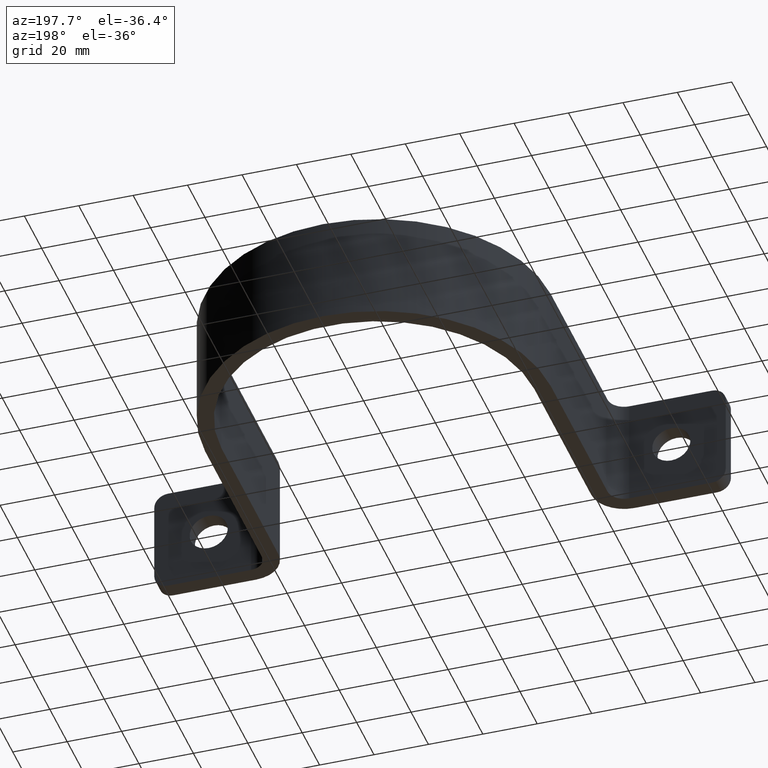
[diagram: clean part render]
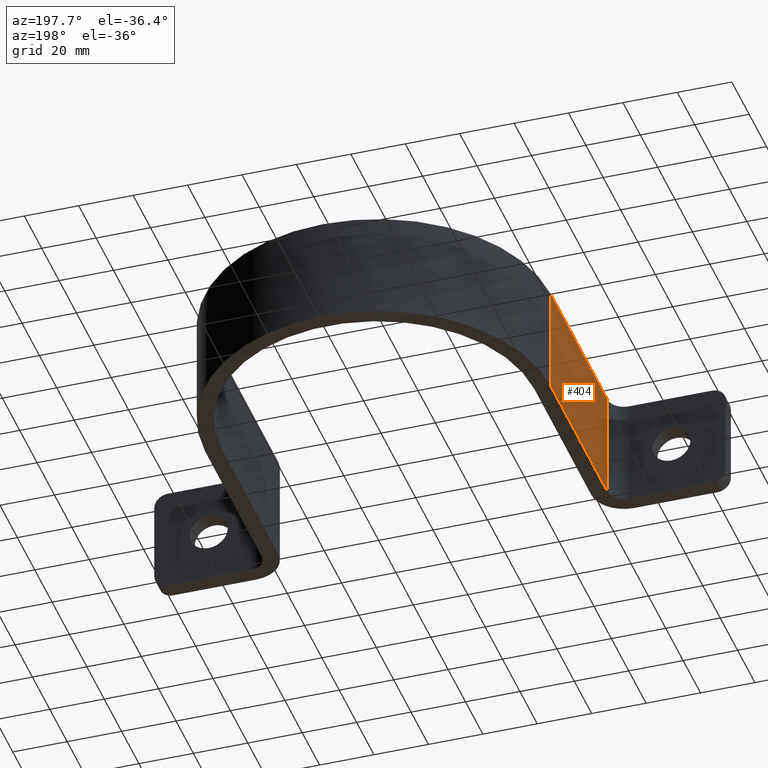
[diagram: same view with one face highlighted and labeled with its STEP entity id]
A machine part, auxiliary view. The second image highlights one B-rep face of the part: STEP entity #404.
In plain terms, the highlighted planar face has unit normal (-1, -0, 0).
Its self-contained STEP definition (entity closure, byte-faithful):
#50 = LINE ( 'NONE', #736, #629 ) ;
#100 = VECTOR ( 'NONE', #756, 1000.000000000000000 ) ;
#102 = VECTOR ( 'NONE', #323, 1000.000000000000000 ) ;
#147 = CARTESIAN_POINT ( 'NONE',  ( -63.50000000000001421, 5.999999999999974243, 20.00000000000000000 ) ) ;
#214 = ORIENTED_EDGE ( 'NONE', *, *, #609, .F. ) ;
#231 = CARTESIAN_POINT ( 'NONE',  ( -63.50000000000001421, 17.99999999999997513, -20.00000000000000000 ) ) ;
#273 = LINE ( 'NONE', #599, #100 ) ;
#282 = AXIS2_PLACEMENT_3D ( 'NONE', #147, #754, #310 ) ;
#310 = DIRECTION ( 'NONE',  ( 0.000000000000000000, 0.000000000000000000, 1.000000000000000000 ) ) ;
#316 = DIRECTION ( 'NONE',  ( -0.000000000000000000, -0.000000000000000000, -1.000000000000000000 ) ) ;
#323 = DIRECTION ( 'NONE',  ( -0.000000000000000000, 1.000000000000000000, 0.000000000000000000 ) ) ;
#329 = PLANE ( 'NONE',  #282 ) ;
#337 = EDGE_CURVE ( 'NONE', #486, #444, #273, .T. ) ;
#357 = VERTEX_POINT ( 'NONE', #679 ) ;
#404 = ADVANCED_FACE ( 'NONE', ( #655 ), #329, .T. ) ;
#405 = DIRECTION ( 'NONE',  ( -0.000000000000000000, 1.000000000000000000, 0.000000000000000000 ) ) ;
#444 = VERTEX_POINT ( 'NONE', #825 ) ;
#456 = EDGE_CURVE ( 'NONE', #357, #706, #735, .T. ) ;
#486 = VERTEX_POINT ( 'NONE', #839 ) ;
#505 = VECTOR ( 'NONE', #316, 1000.000000000000000 ) ;
#588 = LINE ( 'NONE', #596, #102 ) ;
#596 = CARTESIAN_POINT ( 'NONE',  ( -63.50000000000001421, 5.999999999999974243, -20.00000000000000000 ) ) ;
#599 = CARTESIAN_POINT ( 'NONE',  ( -63.50000000000001421, 83.49999999999998579, 20.00000000000000000 ) ) ;
#609 = EDGE_CURVE ( 'NONE', #706, #444, #588, .T. ) ;
#629 = VECTOR ( 'NONE', #405, 1000.000000000000000 ) ;
#655 = FACE_OUTER_BOUND ( 'NONE', #942, .T. ) ;
#679 = CARTESIAN_POINT ( 'NONE',  ( -63.50000000000001421, 17.99999999999997513, 20.00000000000000000 ) ) ;
#706 = VERTEX_POINT ( 'NONE', #231 ) ;
#707 = EDGE_CURVE ( 'NONE', #357, #486, #50, .T. ) ;
#716 = ORIENTED_EDGE ( 'NONE', *, *, #707, .T. ) ;
#735 = LINE ( 'NONE', #740, #505 ) ;
#736 = CARTESIAN_POINT ( 'NONE',  ( -63.50000000000001421, 5.999999999999974243, 20.00000000000000000 ) ) ;
#740 = CARTESIAN_POINT ( 'NONE',  ( -63.50000000000001421, 17.99999999999997513, 20.00000000000000000 ) ) ;
#754 = DIRECTION ( 'NONE',  ( -1.000000000000000000, -0.000000000000000000, 0.000000000000000000 ) ) ;
#756 = DIRECTION ( 'NONE',  ( -0.000000000000000000, -0.000000000000000000, -1.000000000000000000 ) ) ;
#812 = ORIENTED_EDGE ( 'NONE', *, *, #337, .T. ) ;
#825 = CARTESIAN_POINT ( 'NONE',  ( -63.50000000000001421, 83.49999999999998579, -20.00000000000000000 ) ) ;
#839 = CARTESIAN_POINT ( 'NONE',  ( -63.50000000000001421, 83.49999999999998579, 20.00000000000000000 ) ) ;
#942 = EDGE_LOOP ( 'NONE', ( #214, #1112, #716, #812 ) ) ;
#1112 = ORIENTED_EDGE ( 'NONE', *, *, #456, .F. ) ;